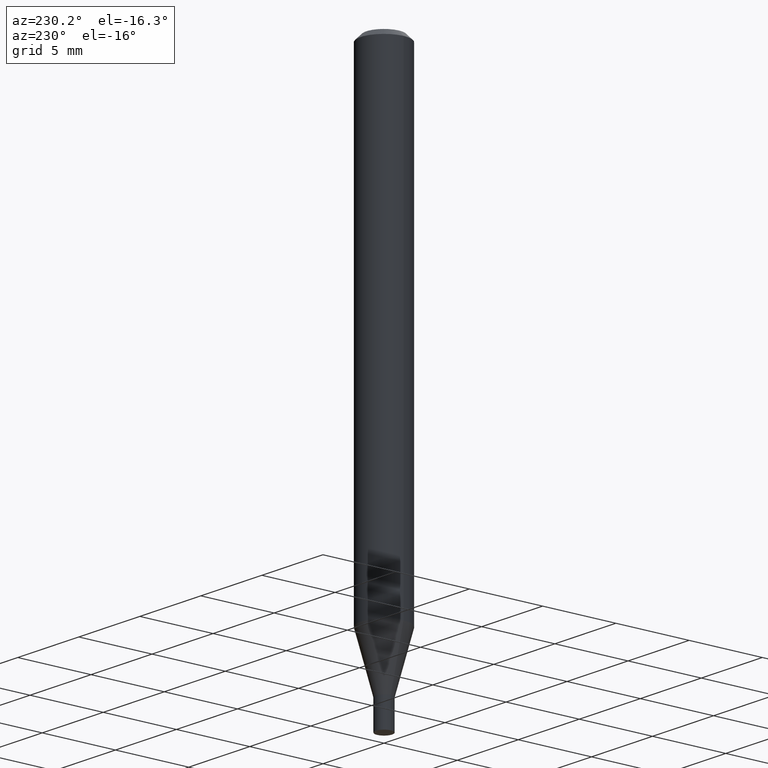
[diagram: clean part render]
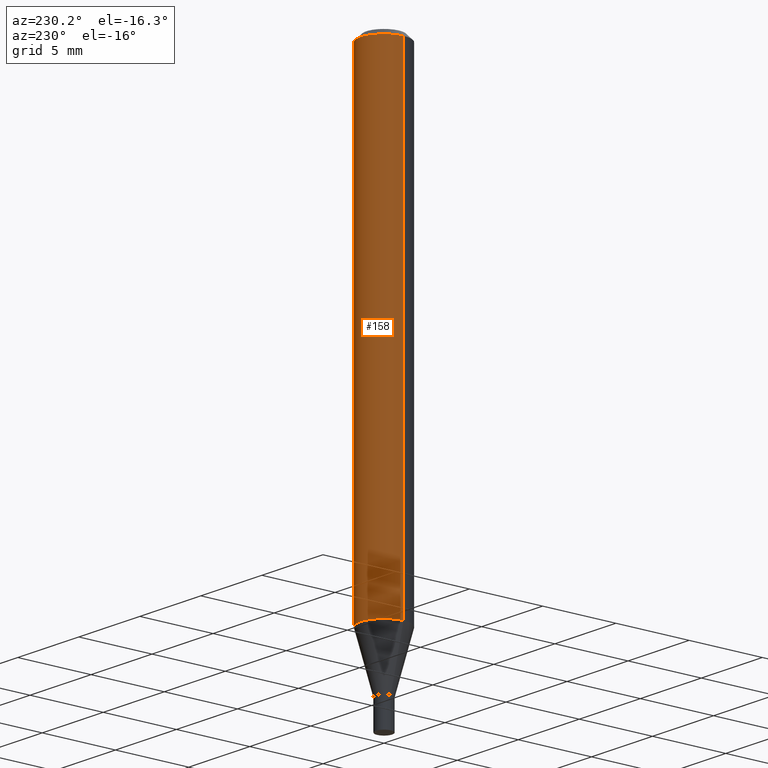
[diagram: same view with one face highlighted and labeled with its STEP entity id]
A machine part, auxiliary view. The second image highlights one B-rep face of the part: STEP entity #158.
In plain terms, the highlighted cylindrical surface (edge-blend (fillet) strip) has radius 1.5875 mm, axis along (-0, 0, 1).
Its self-contained STEP definition (entity closure, byte-faithful):
#24 = CARTESIAN_POINT ( 'NONE',  ( 0.06250000000000000000, -4.888073874380388472E-16, -0.01499999999999999944 ) ) ;
#40 = DIRECTION ( 'NONE',  ( -2.445468806185136597E-29, 3.491481338843145583E-15, 1.000000000000000000 ) ) ;
#42 = AXIS2_PLACEMENT_3D ( 'NONE', #223, #40, #111 ) ;
#54 = EDGE_CURVE ( 'NONE', #318, #278, #335, .T. ) ;
#55 = DIRECTION ( 'NONE',  ( -2.445468806185136877E-29, 3.491481338843145188E-15, 1.000000000000000000 ) ) ;
#97 = EDGE_CURVE ( 'NONE', #278, #466, #387, .T. ) ;
#111 = DIRECTION ( 'NONE',  ( 1.000000000000000000, -6.982962677686266711E-15, 4.876176775795935793E-29 ) ) ;
#136 = CARTESIAN_POINT ( 'NONE',  ( -0.06250000000000000000, -1.804166302005195836E-15, -0.01499999999999999944 ) ) ;
#158 = ADVANCED_FACE ( 'NONE', ( #197 ), #263, .T. ) ;
#178 = DIRECTION ( 'NONE',  ( -2.445468806185136597E-29, 3.491481338843145583E-15, 1.000000000000000000 ) ) ;
#195 = DIRECTION ( 'NONE',  ( 1.000000000000000000, -6.982962677686262766E-15, 0.000000000000000000 ) ) ;
#196 = CARTESIAN_POINT ( 'NONE',  ( -0.06250000000000001388, -4.000049593777807603E-15, -1.272851942293460548 ) ) ;
#197 = FACE_OUTER_BOUND ( 'NONE', #329, .T. ) ;
#204 = CARTESIAN_POINT ( 'NONE',  ( 0.06250000000000000000, -4.364351673553916694E-16, 3.047610484872459871E-30 ) ) ;
#222 = ORIENTED_EDGE ( 'NONE', *, *, #97, .T. ) ;
#223 = CARTESIAN_POINT ( 'NONE',  ( 0.000000000000000000, 0.000000000000000000, 0.000000000000000000 ) ) ;
#231 = AXIS2_PLACEMENT_3D ( 'NONE', #244, #310, #283 ) ;
#244 = CARTESIAN_POINT ( 'NONE',  ( 3.668203209277705088E-31, -5.237222008264718399E-17, -0.01499999999999999944 ) ) ;
#263 = CYLINDRICAL_SURFACE ( 'NONE', #42, 0.06250000000000000000 ) ;
#278 = VERTEX_POINT ( 'NONE', #196 ) ;
#283 = DIRECTION ( 'NONE',  ( 1.000000000000000000, -6.982962677686266711E-15, 0.000000000000000000 ) ) ;
#287 = ORIENTED_EDGE ( 'NONE', *, *, #435, .F. ) ;
#302 = ORIENTED_EDGE ( 'NONE', *, *, #402, .F. ) ;
#310 = DIRECTION ( 'NONE',  ( -2.445468806185136597E-29, 3.491481338843145583E-15, 1.000000000000000000 ) ) ;
#318 = VERTEX_POINT ( 'NONE', #407 ) ;
#329 = EDGE_LOOP ( 'NONE', ( #400, #222, #302, #287 ) ) ;
#335 = CIRCLE ( 'NONE', #418, 0.06250000000000000000 ) ;
#343 = CIRCLE ( 'NONE', #231, 0.06250000000000000000 ) ;
#348 = DIRECTION ( 'NONE',  ( -2.445468806185136877E-29, 3.491481338843145188E-15, 1.000000000000000000 ) ) ;
#367 = VECTOR ( 'NONE', #348, 39.37007874015748143 ) ;
#371 = VERTEX_POINT ( 'NONE', #24 ) ;
#387 = LINE ( 'NONE', #390, #367 ) ;
#390 = CARTESIAN_POINT ( 'NONE',  ( -0.06250000000000000000, 4.440892098500626162E-16, -3.074334431409316114E-30 ) ) ;
#400 = ORIENTED_EDGE ( 'NONE', *, *, #54, .T. ) ;
#402 = EDGE_CURVE ( 'NONE', #371, #466, #343, .T. ) ;
#407 = CARTESIAN_POINT ( 'NONE',  ( 0.06250000000000001388, -4.880573970983261100E-15, -1.272851942293460548 ) ) ;
#410 = VECTOR ( 'NONE', #55, 39.37007874015748143 ) ;
#418 = AXIS2_PLACEMENT_3D ( 'NONE', #438, #178, #195 ) ;
#435 = EDGE_CURVE ( 'NONE', #318, #371, #461, .T. ) ;
#438 = CARTESIAN_POINT ( 'NONE',  ( 3.112719719770821642E-29, -4.444138803627870220E-15, -1.272851942293460548 ) ) ;
#461 = LINE ( 'NONE', #204, #410 ) ;
#466 = VERTEX_POINT ( 'NONE', #136 ) ;